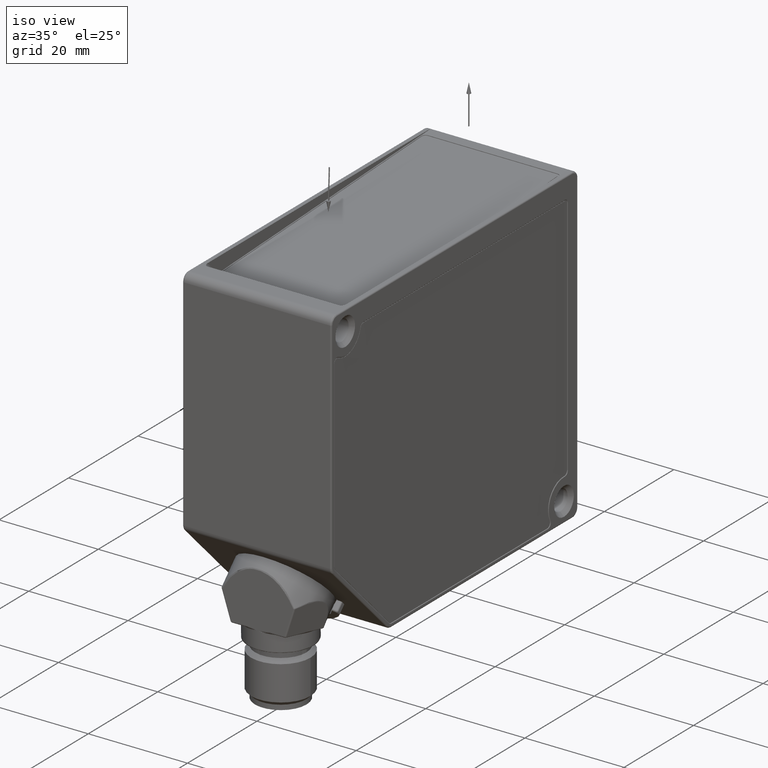
[diagram: clean part render]
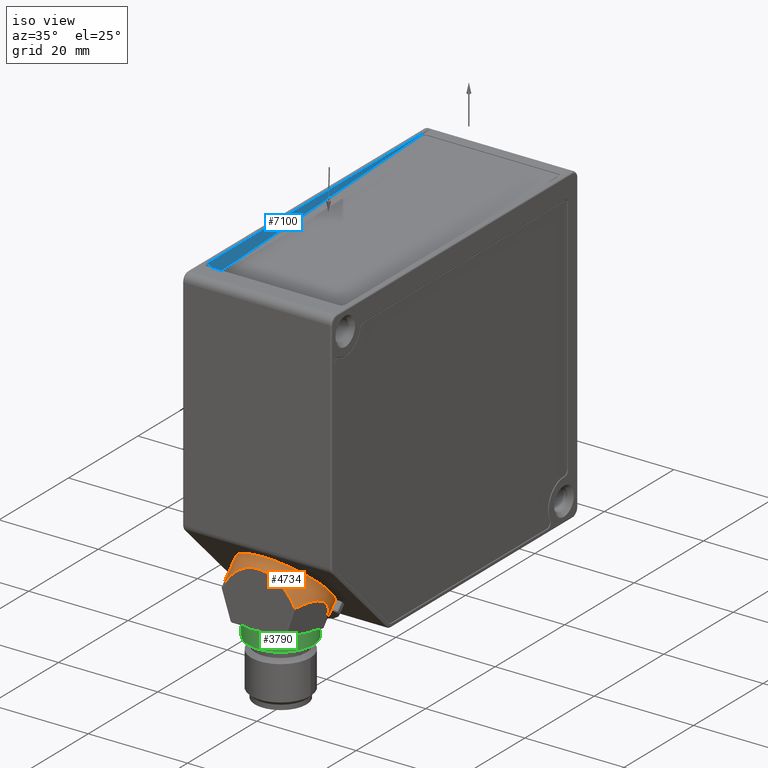
[diagram: same view with three faces highlighted in distinct colors, each labeled with its STEP entity id]
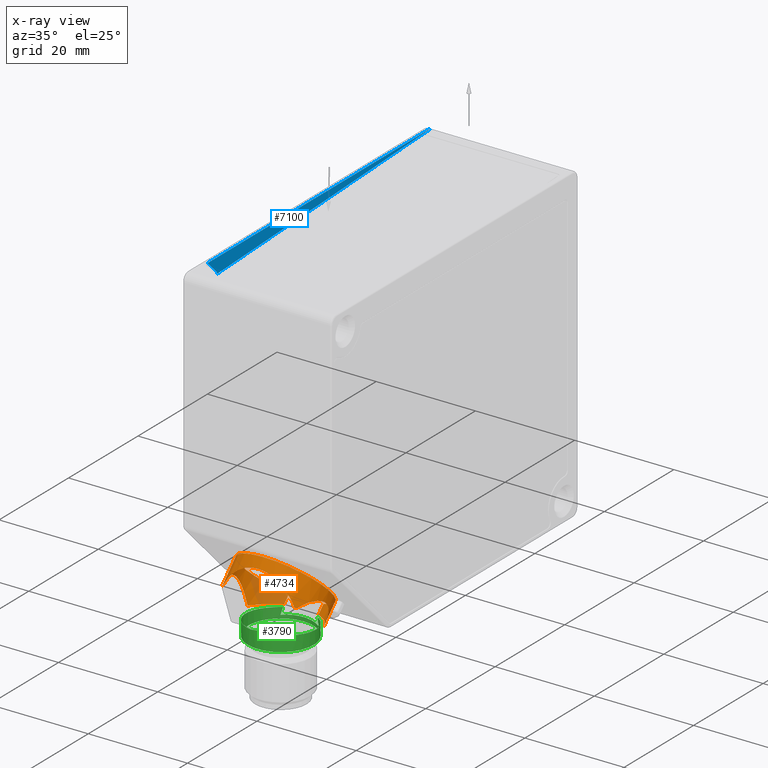
[diagram: x-ray of the same camera — body ghosted, the three highlighted faces saturated]
A machine part, iso view with three faces highlighted in distinct colors.
The next image is the same camera in x-ray (body ghosted, the three faces saturated) — at least one of them is partly hidden behind the body in this view.
Their STEP definitions:

[orange] entity #4734 — the highlighted cylindrical surface (partial cylindrical patch) has radius 9.05 mm, axis along (-0, 0.7071, 0.7071).
#21 = CARTESIAN_POINT ( 'NONE',  ( -0.3373057980377694998, 0.1565639601998413954, -2.161429091982778772 ) ) ;
#29 = DIRECTION ( 'NONE',  ( -4.857225732734976664E-17, 0.7071067811865475727, 0.7071067811865475727 ) ) ;
#64 = EDGE_CURVE ( 'NONE', #9028, #3187, #10433, .T. ) ;
#81 = CARTESIAN_POINT ( 'NONE',  ( -0.3418503414493012094, 0.3204783628916074156, -2.301888781527227312 ) ) ;
#241 = B_SPLINE_CURVE_WITH_KNOTS ( 'NONE', 3,
 ( #11291, #4150, #8115, #7327 ),
 .UNSPECIFIED., .F., .F.,
 ( 4, 4 ),
 ( 0.000000000000000000, 1.000000000000000000 ),
 .UNSPECIFIED. ) ;
#474 = CARTESIAN_POINT ( 'NONE',  ( 0.3244576915894867297, 0.1131979065643592963, -2.158565370466045241 ) ) ;
#669 = CARTESIAN_POINT ( 'NONE',  ( 0.3475848882676926821, 0.3132033383182019626, -2.278185782378934654 ) ) ;
#729 = CARTESIAN_POINT ( 'NONE',  ( 0.3440335134400122619, 0.3180401500581909735, -2.293356136015400892 ) ) ;
#750 = CARTESIAN_POINT ( 'NONE',  ( 0.3032565337447246656, 0.3240059732317909780, -2.420825919330255704 ) ) ;
#786 = CARTESIAN_POINT ( 'NONE',  ( -0.003580030829162922021, 0.01373775761060886530, -1.962713493731645054 ) ) ;
#852 = CARTESIAN_POINT ( 'NONE',  ( -0.2364825308681302307, 0.01584212575123468067, -2.087574010814546632 ) ) ;
#891 = EDGE_CURVE ( 'NONE', #9532, #2340, #12580, .T. ) ;
#916 = CARTESIAN_POINT ( 'NONE',  ( -0.2116506568601266847, 0.01535911917401289878, -2.059102260355671454 ) ) ;
#983 = CARTESIAN_POINT ( 'NONE',  ( 0.2727102391403358750, 0.01670052180699330840, -2.138738414205357596 ) ) ;
#1205 = VERTEX_POINT ( 'NONE', #1766 ) ;
#1352 = VERTEX_POINT ( 'NONE', #1504 ) ;
#1504 = CARTESIAN_POINT ( 'NONE',  ( 0.2353163096929225540, 0.4265283089346103007, -2.432139300135260029 ) ) ;
#1536 = CARTESIAN_POINT ( 'NONE',  ( 0.3317602044777125392, 0.1370998692952246356, -2.159287129757275991 ) ) ;
#1588 = DIRECTION ( 'NONE',  ( 4.857225732734976664E-17, -0.7071067811865475727, -0.7071067811865475727 ) ) ;
#1600 = CARTESIAN_POINT ( 'NONE',  ( 0.3365722353176888726, 0.1540638287383672145, -2.160911637467846536 ) ) ;
#1655 = CARTESIAN_POINT ( 'NONE',  ( -0.1792775088082428359, 0.4740811777291519813, -2.441690235767152384 ) ) ;
#1667 = CARTESIAN_POINT ( 'NONE',  ( 0.3536187948220508304, 0.2310483468736858337, -2.182647905566876823 ) ) ;
#1711 = CARTESIAN_POINT ( 'NONE',  ( -0.2818309777799006266, 0.01696807343438104868, -2.154375976734985709 ) ) ;
#1727 = CARTESIAN_POINT ( 'NONE',  ( 0.3092121714392322973, 0.06766121646756248498, -2.161152027913084694 ) ) ;
#1738 = CARTESIAN_POINT ( 'NONE',  ( -0.3103694363837418702, 0.3270627439973199935, -2.401957966292430413 ) ) ;
#1766 = CARTESIAN_POINT ( 'NONE',  ( -0.3009878911135214219, 0.3234361422914196482, -2.426528288211121875 ) ) ;
#1771 = CARTESIAN_POINT ( 'NONE',  ( -0.1878342521684495670, 0.01498781373662229702, -2.037034285530301414 ) ) ;
#1790 = CARTESIAN_POINT ( 'NONE',  ( 0.3032565337447246656, 0.3240059732317909780, -2.420825919330255704 ) ) ;
#1837 = CARTESIAN_POINT ( 'NONE',  ( -0.007047492343485719721, 0.01373883152497862824, -1.962785561029338766 ) ) ;
#1908 = CARTESIAN_POINT ( 'NONE',  ( 0.03455965357533262450, 0.01377330765845866112, -1.964937712085197408 ) ) ;
#1969 = CARTESIAN_POINT ( 'NONE',  ( 0.08949575505010384791, 0.01400359788951257775, -1.978482322086254408 ) ) ;
#2034 = CARTESIAN_POINT ( 'NONE',  ( -0.1649509165261583421, 0.01468626133962540152, -2.018988731386211377 ) ) ;
#2120 = VERTEX_POINT ( 'NONE', #4716 ) ;
#2131 = CARTESIAN_POINT ( 'NONE',  ( -0.3375020632717470326, 0.1572872854422971423, -2.161523450690107317 ) ) ;
#2340 = VERTEX_POINT ( 'NONE', #9407 ) ;
#2388 = CARTESIAN_POINT ( 'NONE',  ( -0.1810690987895234583, 0.4726686140636989220, -2.441613468624826311 ) ) ;
#2450 = CARTESIAN_POINT ( 'NONE',  ( -0.3557900078515745523, 0.2877469789322092408, -2.229586643023659498 ) ) ;
#2463 = ORIENTED_EDGE ( 'NONE', *, *, #4328, .T. ) ;
#2479 = EDGE_CURVE ( 'NONE', #9937, #1352, #13039, .T. ) ;
#2503 = CARTESIAN_POINT ( 'NONE',  ( -0.2249067010994372506, 0.4333519142565980253, -2.437772730743672955 ) ) ;
#2535 = CARTESIAN_POINT ( 'NONE',  ( 0.3349885122665128834, 0.3282815506094491909, -2.330046393161829599 ) ) ;
#2586 = CARTESIAN_POINT ( 'NONE',  ( -0.1627159711701160749, 0.4864537153617773946, -2.442172518459178931 ) ) ;
#2588 = VERTEX_POINT ( 'NONE', #12120 ) ;
#2599 = CARTESIAN_POINT ( 'NONE',  ( 0.3032565337447246656, 0.3240059732317909780, -2.420825919330255704 ) ) ;
#2658 = AXIS2_PLACEMENT_3D ( 'NONE', #5485, #1588, #3508 ) ;
#2710 = CARTESIAN_POINT ( 'NONE',  ( -0.2902570552131359394, 0.01724550260230529528, -2.170836774033314764 ) ) ;
#2771 = CARTESIAN_POINT ( 'NONE',  ( -0.1371651485273857884, 0.01437136374171399909, -2.000453989647130282 ) ) ;
#2785 = CARTESIAN_POINT ( 'NONE',  ( -0.2847055269213616402, 0.3565009867412244904, -2.429812815876571719 ) ) ;
#2786 = B_SPLINE_CURVE_WITH_KNOTS ( 'NONE', 3,
 ( #12893, #10056, #2785, #5886 ),
 .UNSPECIFIED., .F., .F.,
 ( 4, 4 ),
 ( 0.000000000000000000, 1.000000000000000000 ),
 .UNSPECIFIED. ) ;
#2837 = CARTESIAN_POINT ( 'NONE',  ( 0.1846327535783063023, 0.01494073370553782899, -2.034219586152010706 ) ) ;
#2872 = CARTESIAN_POINT ( 'NONE',  ( -0.3386029851554827053, 0.3232023066476868989, -2.314137467956025151 ) ) ;
#2906 = CARTESIAN_POINT ( 'NONE',  ( 0.1936578739429471729, 0.01507369599478169085, -2.042164174328435777 ) ) ;
#2935 = EDGE_CURVE ( 'NONE', #6178, #9532, #241, .T. ) ;
#2977 = CARTESIAN_POINT ( 'NONE',  ( 0.2385000722603436984, 0.01588408566750295833, -2.090073422435400730 ) ) ;
#3037 = CARTESIAN_POINT ( 'NONE',  ( 0.09640004958094937348, 0.01404651366006772449, -1.981074153167629470 ) ) ;
#3132 = CARTESIAN_POINT ( 'NONE',  ( -0.3384019601228753227, 0.1606293109035148436, -2.161980299869863842 ) ) ;
#3187 = VERTEX_POINT ( 'NONE', #4719 ) ;
#3508 = DIRECTION ( 'NONE',  ( -1.776356839400250859E-15, -0.7071067811865474617, 0.7071067811865474617 ) ) ;
#3518 = CARTESIAN_POINT ( 'NONE',  ( 0.3443417978315393424, 0.3176764927089300028, -2.292091951202783306 ) ) ;
#3702 = ORIENTED_EDGE ( 'NONE', *, *, #64, .T. ) ;
#3708 = CARTESIAN_POINT ( 'NONE',  ( 0.3355546045436977320, 0.1503920759182069966, -2.160487810912605333 ) ) ;
#3758 = CARTESIAN_POINT ( 'NONE',  ( -0.1102328490619608053, 0.01414346657502919824, -1.986904462775068714 ) ) ;
#3774 = CARTESIAN_POINT ( 'NONE',  ( 0.3457439583092356550, 0.3158993294852954770, -2.286226703784473457 ) ) ;
#3825 = CARTESIAN_POINT ( 'NONE',  ( 0.02416102139062393378, 0.01375253656636869597, -1.963671073860299154 ) ) ;
#3889 = CARTESIAN_POINT ( 'NONE',  ( 0.1100157792081410957, 0.01414186111198403178, -1.986806331263076819 ) ) ;
#3963 = CARTESIAN_POINT ( 'NONE',  ( 0.2344646782096759252, 0.01580058970806012819, -2.085105211020698679 ) ) ;
#4028 = CARTESIAN_POINT ( 'NONE',  ( -0.1664292681894579407, 0.01470440595788706159, -2.020069342586483074 ) ) ;
#4111 = CARTESIAN_POINT ( 'NONE',  ( -0.3471927522521117693, 0.1967152613355725443, -2.169689498256808680 ) ) ;
#4150 = CARTESIAN_POINT ( 'NONE',  ( 0.1850755985962607153, 0.4743547113656206848, -2.438928679509398290 ) ) ;
#4328 = EDGE_CURVE ( 'NONE', #1352, #6178, #12934, .T. ) ;
#4356 = CARTESIAN_POINT ( 'NONE',  ( -0.1826089226898253703, 0.4714443553940863563, -2.441543998488392653 ) ) ;
#4420 = CARTESIAN_POINT ( 'NONE',  ( -0.3263085044461577766, 0.1162038968496584834, -2.156303303104773583 ) ) ;
#4422 = CARTESIAN_POINT ( 'NONE',  ( -0.1363498056261443214, 0.5592560100101805487, -2.386586306215456421 ) ) ;
#4494 = CARTESIAN_POINT ( 'NONE',  ( 0.3293996736952625182, 0.1292334915100005199, -2.158922026767654323 ) ) ;
#4526 = CARTESIAN_POINT ( 'NONE',  ( -0.2323824873848895634, 0.4258054827751256433, -2.436714695658281027 ) ) ;
#4550 = CARTESIAN_POINT ( 'NONE',  ( -0.1726823641151886413, 0.4791480312821668752, -2.441927965014671464 ) ) ;
#4635 = CARTESIAN_POINT ( 'NONE',  ( 0.2109953504783215472, 0.4509726579939168922, -2.435372082269928296 ) ) ;
#4637 = B_SPLINE_CURVE_WITH_KNOTS ( 'NONE', 3,
 ( #2503, #4526, #8694, #12600 ),
 .UNSPECIFIED., .F., .F.,
 ( 4, 4 ),
 ( 0.000000000000000000, 1.000000000000000000 ),
 .UNSPECIFIED. ) ;
#4638 = CARTESIAN_POINT ( 'NONE',  ( 0.2837039418837620786, 0.3644449108835564610, -2.425219281752212463 ) ) ;
#4716 = CARTESIAN_POINT ( 'NONE',  ( 0.2901251297298145237, 0.01724116187900382249, -2.170579224450756239 ) ) ;
#4719 = CARTESIAN_POINT ( 'NONE',  ( -0.1363498136997982058, 0.5036367134425254743, -2.442205602819474741 ) ) ;
#4734 = ADVANCED_FACE ( 'NONE', ( #10798 ), #4777, .T. ) ;
#4756 = CARTESIAN_POINT ( 'NONE',  ( 0.3515150996192913935, 0.3049258021764038595, -2.258644327763474458 ) ) ;
#4769 = CARTESIAN_POINT ( 'NONE',  ( -0.3290311254611034686, 0.3273887129435336107, -2.346634235021170856 ) ) ;
#4777 = CYLINDRICAL_SURFACE ( 'NONE', #7279, 0.3562992125984252301 ) ;
#4810 = CARTESIAN_POINT ( 'NONE',  ( 0.001545961647952103207, 0.01373747574293101778, -1.962693582921708479 ) ) ;
#4878 = CARTESIAN_POINT ( 'NONE',  ( -0.01224961577843611434, 0.01374125597903967134, -1.962946572824323166 ) ) ;
#4895 = CARTESIAN_POINT ( 'NONE',  ( -0.2902570552131359394, 0.01724550260230529528, -2.170836774033314764 ) ) ;
#4944 = CARTESIAN_POINT ( 'NONE',  ( 0.1167876384918415250, 0.01419463421705726043, -1.989966707990343364 ) ) ;
#5011 = CARTESIAN_POINT ( 'NONE',  ( 0.2816918022973952107, 0.01696386870986327580, -2.154126496413596659 ) ) ;
#5055 = DIRECTION ( 'NONE',  ( 0.000000000000000000, -0.7071067811865474617, 0.7071067811865474617 ) ) ;
#5105 = CARTESIAN_POINT ( 'NONE',  ( -0.3396306505981719903, 0.1652658689102808887, -2.162673727856615269 ) ) ;
#5121 = ORIENTED_EDGE ( 'NONE', *, *, #2479, .T. ) ;
#5164 = CARTESIAN_POINT ( 'NONE',  ( -0.3106898327617939048, 0.06958873201716718471, -2.159082829567935846 ) ) ;
#5485 = CARTESIAN_POINT ( 'NONE',  ( -3.950252198838886955E-18, 0.3264923322123222671, -2.153822628417597862 ) ) ;
#5510 = EDGE_CURVE ( 'NONE', #2588, #1205, #2786, .T. ) ;
#5553 = CARTESIAN_POINT ( 'NONE',  ( 0.3002549612022729075, 0.04315258497469637300, -2.164763344509119225 ) ) ;
#5619 = CARTESIAN_POINT ( 'NONE',  ( 0.3489776140457377940, 0.3105805686916319197, -2.271553995019730987 ) ) ;
#5686 = CARTESIAN_POINT ( 'NONE',  ( 0.3364158260751852203, 0.1534965902095484780, -2.160843734448762543 ) ) ;
#5731 = CARTESIAN_POINT ( 'NONE',  ( -0.2466989310800414004, 0.01606102456306852597, -2.100659734836170411 ) ) ;
#5747 = CARTESIAN_POINT ( 'NONE',  ( 0.3426210464809385514, 0.1760974332211454607, -2.163630176932218152 ) ) ;
#5759 = CARTESIAN_POINT ( 'NONE',  ( -0.3185599420433609108, 0.3284511798241628311, -2.378860130705683584 ) ) ;
#5794 = CARTESIAN_POINT ( 'NONE',  ( -0.1938488381448611186, 0.01507656698360502687, -2.042336239661738162 ) ) ;
#5871 = CARTESIAN_POINT ( 'NONE',  ( -0.2231963744561233087, 0.01557009423538777658, -2.071427368886280096 ) ) ;
#5886 = CARTESIAN_POINT ( 'NONE',  ( -0.3009878911135214219, 0.3234361422914196482, -2.426528288211121875 ) ) ;
#5902 = CARTESIAN_POINT ( 'NONE',  ( -0.3408006349470585339, 0.3214404711182211050, -2.305924340831686070 ) ) ;
#5934 = CARTESIAN_POINT ( 'NONE',  ( 0.2230179693511319117, 0.01556667328156831343, -2.071228442557816685 ) ) ;
#5998 = CARTESIAN_POINT ( 'NONE',  ( 0.2514511523420409067, 0.01616568010211321890, -2.106931004415357300 ) ) ;
#6066 = CARTESIAN_POINT ( 'NONE',  ( -0.1170034172868428118, 0.01419636376592117201, -1.990070934721413165 ) ) ;
#6099 = CARTESIAN_POINT ( 'NONE',  ( -0.3513540307462175716, 0.3069175585246299853, -2.260828122205171375 ) ) ;
#6161 = CARTESIAN_POINT ( 'NONE',  ( -0.2902570552131359394, 0.01724550260230529528, -2.170836774033314764 ) ) ;
#6178 = VERTEX_POINT ( 'NONE', #4635 ) ;
#6426 = VERTEX_POINT ( 'NONE', #11444 ) ;
#6541 = EDGE_CURVE ( 'NONE', #2120, #9937, #8619, .T. ) ;
#6550 = CARTESIAN_POINT ( 'NONE',  ( -0.1363498136997982058, 0.5036367134425254743, -2.442205602819474741 ) ) ;
#6603 = CARTESIAN_POINT ( 'NONE',  ( -0.1827912520299223575, 0.4712987574116651590, -2.441535554582322742 ) ) ;
#6734 = CARTESIAN_POINT ( 'NONE',  ( -0.2540051672405674310, 0.01622706838377147714, -2.110599773516222299 ) ) ;
#6741 = VERTEX_POINT ( 'NONE', #4895 ) ;
#6795 = CARTESIAN_POINT ( 'NONE',  ( -0.08971398591642108789, 0.01400488451712932243, -1.978561230694449335 ) ) ;
#6861 = CARTESIAN_POINT ( 'NONE',  ( -0.02439052992750589954, 0.01375287190122738597, -1.963692906736885568 ) ) ;
#6890 = EDGE_CURVE ( 'NONE', #6741, #2120, #12564, .T. ) ;
#6934 = CARTESIAN_POINT ( 'NONE',  ( -0.2355436611588560825, 0.01582275670195820716, -2.086422140332220732 ) ) ;
#6997 = CARTESIAN_POINT ( 'NONE',  ( -0.001773332708779218336, 0.01373749181338940369, -1.962695064641908127 ) ) ;
#7057 = CARTESIAN_POINT ( 'NONE',  ( 0.2353743773127805750, 0.01581927024435999737, -2.086214828305940738 ) ) ;
#7089 = ORIENTED_EDGE ( 'NONE', *, *, #7161, .T. ) ;
#7160 = CARTESIAN_POINT ( 'NONE',  ( -0.3556891905616523242, 0.2485424323925016776, -2.193027519806642012 ) ) ;
#7161 = EDGE_CURVE ( 'NONE', #6426, #2588, #4637, .T. ) ;
#7279 = AXIS2_PLACEMENT_3D ( 'NONE', #7886, #29, #5055 ) ;
#7319 = ORIENTED_EDGE ( 'NONE', *, *, #5510, .T. ) ;
#7327 = CARTESIAN_POINT ( 'NONE',  ( 0.1363498057765686056, 0.5045659676791267589, -2.441276349060099715 ) ) ;
#7605 = CARTESIAN_POINT ( 'NONE',  ( -0.1823520460775644725, 0.4716491836950218453, -2.441555791953969656 ) ) ;
#7718 = EDGE_CURVE ( 'NONE', #2340, #9028, #8344, .T. ) ;
#7731 = CARTESIAN_POINT ( 'NONE',  ( 0.2195676465029865465, 0.4432396450602403837, -2.434195824443813105 ) ) ;
#7736 = CARTESIAN_POINT ( 'NONE',  ( 0.3528760164356575801, 0.3006103264903188244, -2.250509764549018410 ) ) ;
#7788 = CARTESIAN_POINT ( 'NONE',  ( -0.2346366749519115946, 0.01580411336827413499, -2.085314403703284913 ) ) ;
#7850 = CARTESIAN_POINT ( 'NONE',  ( -0.1787146643582447347, 0.01486220707024640472, -2.029510810462325399 ) ) ;
#7886 = CARTESIAN_POINT ( 'NONE',  ( 1.287793144213267755E-17, 0.08151045526580197320, -2.398804505364117823 ) ) ;
#7914 = CARTESIAN_POINT ( 'NONE',  ( 0.1369538974587090896, 0.01436926470452923842, -2.000331714245678238 ) ) ;
#7986 = CARTESIAN_POINT ( 'NONE',  ( 0.2363137640505778847, 0.01583863054214688232, -2.087365857950735926 ) ) ;
#8047 = CARTESIAN_POINT ( 'NONE',  ( 0.2114667595476076856, 0.01535591582525533752, -2.058913825261713626 ) ) ;
#8115 = CARTESIAN_POINT ( 'NONE',  ( 0.1595350575065804521, 0.4917915439432967717, -2.440469166177817062 ) ) ;
#8144 = CARTESIAN_POINT ( 'NONE',  ( -0.3425802772103919147, 0.3197584230212400791, -2.299035122082995652 ) ) ;
#8344 = CIRCLE ( 'NONE', #2658, 0.3562992125984252301 ) ;
#8457 = VECTOR ( 'NONE', #11589, 39.37007874015748854 ) ;
#8482 = CARTESIAN_POINT ( 'NONE',  ( 0.1363498056261442937, 0.3142741330636604213, -2.631568183161976382 ) ) ;
#8522 = CARTESIAN_POINT ( 'NONE',  ( -0.1819668694674570486, 0.4719559698052159802, -2.441573356825220475 ) ) ;
#8532 = CARTESIAN_POINT ( 'NONE',  ( 0.3214809288597296200, 0.3305230116965785503, -2.372522014128415790 ) ) ;
#8602 = CARTESIAN_POINT ( 'NONE',  ( 0.3555119611864921980, 0.2467441286755976404, -2.191779654982769276 ) ) ;
#8619 = B_SPLINE_CURVE_WITH_KNOTS ( 'NONE', 3,
 ( #12828, #5553, #1727, #10645, #474, #4494, #1536, #12756, #3708, #12692, #5686, #1600, #5747, #9584, #1667, #8602, #9779, #9720, #7736, #4756, #5619, #669, #3774, #11696, #3518, #729, #2535, #8532, #2599 ),
 .UNSPECIFIED., .F., .F.,
 ( 4, 2, 2, 1, 1, 1, 2, 2, 2, 2, 2, 2, 1, 1, 2, 2, 4 ),
 ( 0.000000000000000000, 0.1249999999999953648, 0.1874999999999930611, 0.2187499999999919509, 0.2343749999999913958, 0.2421874999999911460, 0.2460937499999910349, 0.2499999999999908962, 0.3749999999999881206, 0.4999999999999854561, 0.6249999999999826805, 0.6874999999999821254, 0.7187499999999817923, 0.7343749999999816813, 0.7421874999999815703, 0.7499999999999814593, 1.000000000000000000 ),
 .UNSPECIFIED. ) ;
#8694 = CARTESIAN_POINT ( 'NONE',  ( -0.2394366392801726418, 0.4179174774520215130, -2.435770412292985299 ) ) ;
#8714 = CARTESIAN_POINT ( 'NONE',  ( 0.2353163096929225540, 0.4265283089346103007, -2.432139300135260029 ) ) ;
#8806 = CARTESIAN_POINT ( 'NONE',  ( -0.3322196156117877552, 0.3265102862063268829, -2.336295661735420470 ) ) ;
#8842 = CARTESIAN_POINT ( 'NONE',  ( -0.2430147285823667513, 0.01597975438282841359, -2.095789947694525424 ) ) ;
#8908 = CARTESIAN_POINT ( 'NONE',  ( 0.006817165327826606169, 0.01373875037889040265, -1.962779303282870202 ) ) ;
#8975 = CARTESIAN_POINT ( 'NONE',  ( 0.1662296874149854498, 0.01470195477068965591, -2.019922804614282974 ) ) ;
#9028 = VERTEX_POINT ( 'NONE', #4422 ) ;
#9050 = CARTESIAN_POINT ( 'NONE',  ( 0.2901251297298145237, 0.01724116187900382249, -2.170579224450756239 ) ) ;
#9132 = CARTESIAN_POINT ( 'NONE',  ( -0.3538731410034503533, 0.2327369143624856973, -2.183616801649178818 ) ) ;
#9196 = CARTESIAN_POINT ( 'NONE',  ( -0.3566494676437533262, 0.2759425392617552153, -2.215908915721404249 ) ) ;
#9407 = CARTESIAN_POINT ( 'NONE',  ( 0.1363498056261448210, 0.5592560100101229281, -2.386586306215513265 ) ) ;
#9441 = CARTESIAN_POINT ( 'NONE',  ( -0.3427138443719991989, 0.3196223583803536328, -2.298508917045488875 ) ) ;
#9532 = VERTEX_POINT ( 'NONE', #11930 ) ;
#9584 = CARTESIAN_POINT ( 'NONE',  ( 0.3471720069422828958, 0.1956921338695151724, -2.168546336569870725 ) ) ;
#9720 = CARTESIAN_POINT ( 'NONE',  ( 0.3559627668585417237, 0.2860802581354536245, -2.227574972505986572 ) ) ;
#9779 = CARTESIAN_POINT ( 'NONE',  ( 0.3566907540466021098, 0.2742822631111070386, -2.214243880218790927 ) ) ;
#9835 = CARTESIAN_POINT ( 'NONE',  ( -0.09661925785402683542, 0.01404790248896444112, -1.981159969633806694 ) ) ;
#9842 = B_SPLINE_CURVE_WITH_KNOTS ( 'NONE', 3,
 ( #10004, #1738, #5759, #4769, #8806, #11912, #2872, #5902, #81, #10194, #8144, #9441, #10509, #6099, #2450, #9196, #7160, #9132, #11251, #4111, #12545, #12181, #5105, #3132, #11192, #2131, #21, #4420, #5164, #6161 ),
 .UNSPECIFIED., .F., .F.,
 ( 4, 2, 2, 1, 1, 1, 2, 2, 2, 2, 2, 2, 1, 1, 1, 2, 2, 4 ),
 ( 0.000000000000000000, 0.1249999999999861777, 0.1874999999999799327, 0.2187499999999774902, 0.2343749999999771017, 0.2421874999999760469, 0.2460937499999755751, 0.2499999999999750755, 0.3749999999999811817, 0.4999999999999873435, 0.6249999999999934497, 0.6874999999999970024, 0.7187499999999984457, 0.7343749999999991118, 0.7421874999999993339, 0.7460937499999994449, 0.7499999999999995559, 1.000000000000000000 ),
 .UNSPECIFIED. ) ;
#9911 = CARTESIAN_POINT ( 'NONE',  ( -0.03478814040970105992, 0.01377382965425613670, -1.964968789958616568 ) ) ;
#9937 = VERTEX_POINT ( 'NONE', #1790 ) ;
#9975 = CARTESIAN_POINT ( 'NONE',  ( -0.06930328652630647623, 0.01389046892259303105, -1.971769182887583849 ) ) ;
#10004 = CARTESIAN_POINT ( 'NONE',  ( -0.3009878911135214219, 0.3234361422914196482, -2.426528288211121875 ) ) ;
#10039 = CARTESIAN_POINT ( 'NONE',  ( 0.2586377033712407569, 0.01633870677568772037, -2.117265545559975148 ) ) ;
#10056 = CARTESIAN_POINT ( 'NONE',  ( -0.2659438275569194210, 0.3852607281420953877, -2.432625836091041105 ) ) ;
#10105 = EDGE_CURVE ( 'NONE', #3187, #6426, #11055, .T. ) ;
#10106 = CARTESIAN_POINT ( 'NONE',  ( -0.1741304305905638783, 0.01480126600723201923, -2.025856418429779371 ) ) ;
#10184 = ORIENTED_EDGE ( 'NONE', *, *, #891, .T. ) ;
#10194 = CARTESIAN_POINT ( 'NONE',  ( -0.3422897035793733278, 0.3200487044025506767, -2.300174542873291816 ) ) ;
#10420 = ORIENTED_EDGE ( 'NONE', *, *, #12939, .T. ) ;
#10433 = LINE ( 'NONE', #12540, #12603 ) ;
#10444 = CARTESIAN_POINT ( 'NONE',  ( -0.2249067010994372506, 0.4333519142565980253, -2.437772730743672955 ) ) ;
#10503 = DIRECTION ( 'NONE',  ( 4.857225732734975432E-17, -0.7071067811865474617, -0.7071067811865474617 ) ) ;
#10509 = CARTESIAN_POINT ( 'NONE',  ( -0.3477795285244694723, 0.3143431382448903522, -2.278441474198156236 ) ) ;
#10579 = CARTESIAN_POINT ( 'NONE',  ( -0.1666684910023745192, 0.4836208980553791670, -2.442096361720400122 ) ) ;
#10635 = CARTESIAN_POINT ( 'NONE',  ( -0.2069825421270883314, 0.4514454541711170332, -2.440309505919464605 ) ) ;
#10645 = CARTESIAN_POINT ( 'NONE',  ( 0.3208683535537656395, 0.1021037045906270230, -2.158825626325441505 ) ) ;
#10699 = CARTESIAN_POINT ( 'NONE',  ( -0.1510544900989643780, 0.4945256095395510476, -2.442313389366209897 ) ) ;
#10764 = CARTESIAN_POINT ( 'NONE',  ( -0.2728561891137900042, 0.01670455181814666651, -2.138979545316547881 ) ) ;
#10798 = FACE_OUTER_BOUND ( 'NONE', #10901, .T. ) ;
#10826 = CARTESIAN_POINT ( 'NONE',  ( -0.05553549916236172335, 0.01383116754061611796, -1.968369535037367779 ) ) ;
#10893 = CARTESIAN_POINT ( 'NONE',  ( -0.2386676242674397597, 0.01588760242023567332, -2.090283533429764251 ) ) ;
#10901 = EDGE_LOOP ( 'NONE', ( #12662, #7089, #7319, #10420, #11739, #11042, #5121, #2463, #11914, #10184, #11635, #3702 ) ) ;
#10967 = CARTESIAN_POINT ( 'NONE',  ( 0.01201945345895982092, 0.01374110628622057795, -1.962935629822578631 ) ) ;
#11027 = CARTESIAN_POINT ( 'NONE',  ( 0.2428496400355741325, 0.01597619025455691150, -2.095575935939572254 ) ) ;
#11042 = ORIENTED_EDGE ( 'NONE', *, *, #6541, .T. ) ;
#11055 = B_SPLINE_CURVE_WITH_KNOTS ( 'NONE', 3,
 ( #6550, #11565, #10699, #2586, #10579, #4550, #11628, #1655, #2388, #8522, #7605, #4356, #6603, #11496, #10635, #10444 ),
 .UNSPECIFIED., .F., .F.,
 ( 4, 2, 2, 1, 1, 1, 1, 2, 2, 4 ),
 ( 0.000000000000000000, 0.2500000000000021649, 0.3750000000000029976, 0.4375000000000033862, 0.4687500000000038303, 0.4843750000000044409, 0.4921875000000055511, 0.4960937500000057176, 0.5000000000000058842, 1.000000000000000000 ),
 .UNSPECIFIED. ) ;
#11092 = CARTESIAN_POINT ( 'NONE',  ( 0.1501991994619349124, 0.01450811002578059582, -2.008420896613883233 ) ) ;
#11192 = CARTESIAN_POINT ( 'NONE',  ( -0.3378635924435446358, 0.1586262224012518762, -2.161703470912577085 ) ) ;
#11251 = CARTESIAN_POINT ( 'NONE',  ( -0.3491165516853554918, 0.2060881567931421021, -2.172763410481622248 ) ) ;
#11291 = CARTESIAN_POINT ( 'NONE',  ( 0.2109953504783215472, 0.4509726579939168922, -2.435372082269928296 ) ) ;
#11444 = CARTESIAN_POINT ( 'NONE',  ( -0.2249067010994372506, 0.4333519142565980253, -2.437772730743672955 ) ) ;
#11496 = CARTESIAN_POINT ( 'NONE',  ( -0.1924256513687896408, 0.4635991513474291836, -2.441087267248003734 ) ) ;
#11565 = CARTESIAN_POINT ( 'NONE',  ( -0.1435425591297588843, 0.4993382616091891490, -2.442290637164835854 ) ) ;
#11589 = DIRECTION ( 'NONE',  ( -4.857225732734975432E-17, 0.7071067811865474617, 0.7071067811865474617 ) ) ;
#11628 = CARTESIAN_POINT ( 'NONE',  ( -0.1757105488062383203, 0.4768556871180621437, -2.441830225688322198 ) ) ;
#11635 = ORIENTED_EDGE ( 'NONE', *, *, #7718, .T. ) ;
#11696 = CARTESIAN_POINT ( 'NONE',  ( 0.3449088102400308942, 0.3169761496480241192, -2.289737296095901709 ) ) ;
#11715 = CARTESIAN_POINT ( 'NONE',  ( 0.2353163096929225540, 0.4265283089346103007, -2.432139300135260029 ) ) ;
#11739 = ORIENTED_EDGE ( 'NONE', *, *, #6890, .T. ) ;
#11747 = CARTESIAN_POINT ( 'NONE',  ( -0.2587931476199918923, 0.01634249624501030521, -2.117493812532410757 ) ) ;
#11755 = CARTESIAN_POINT ( 'NONE',  ( 0.2109953504783215472, 0.4509726579939168922, -2.435372082269928296 ) ) ;
#11822 = CARTESIAN_POINT ( 'NONE',  ( -0.2349172223983470587, 0.01580987000788893621, -2.085656304359206903 ) ) ;
#11881 = CARTESIAN_POINT ( 'NONE',  ( 0.1739329654354083432, 0.01479872277447264947, -2.025702668598285960 ) ) ;
#11912 = CARTESIAN_POINT ( 'NONE',  ( -0.3365504776548074450, 0.3244317846223673252, -2.321418434907769335 ) ) ;
#11914 = ORIENTED_EDGE ( 'NONE', *, *, #2935, .T. ) ;
#11930 = CARTESIAN_POINT ( 'NONE',  ( 0.1363498057765686056, 0.5045659676791267589, -2.441276349060099715 ) ) ;
#11951 = CARTESIAN_POINT ( 'NONE',  ( 0.1693150285910165476, 0.01474035349941871936, -2.022213337251888898 ) ) ;
#12023 = CARTESIAN_POINT ( 'NONE',  ( -0.1695137781593529513, 0.01474283969005163106, -2.022362765989973887 ) ) ;
#12085 = CARTESIAN_POINT ( 'NONE',  ( 0.2347475946652378687, 0.01580638927519466969, -2.085449553253021282 ) ) ;
#12120 = CARTESIAN_POINT ( 'NONE',  ( -0.2460823019005188572, 0.4097300478414132030, -2.434982030201913616 ) ) ;
#12181 = CARTESIAN_POINT ( 'NONE',  ( -0.3419778915237939310, 0.1743889517783490661, -2.164249786357706817 ) ) ;
#12540 = CARTESIAN_POINT ( 'NONE',  ( -0.1363498056261439051, 0.3142741330636605324, -2.631568183161976826 ) ) ;
#12545 = CARTESIAN_POINT ( 'NONE',  ( -0.3438005616687844213, 0.1819488892640431510, -2.165922392682653630 ) ) ;
#12564 = B_SPLINE_CURVE_WITH_KNOTS ( 'NONE', 3,
 ( #2710, #1711, #10764, #11747, #6734, #5731, #8842, #10893, #852, #6934, #11822, #7788, #5871, #916, #5794, #1771, #7850, #10106, #12023, #4028, #2034, #12808, #2771, #6066, #3758, #9835, #6795, #9975, #10826, #9911, #6861, #4878, #1837, #786, #6997, #4810, #12882, #8908, #10967, #3825, #1908, #13085, #13016, #1969, #3037, #3889, #4944, #7914, #11092, #12943, #8975, #11951, #11881, #2837, #2906, #8047, #5934, #3963, #12085, #7057, #7986, #2977, #11027, #5998, #10039, #983, #5011, #9050 ),
 .UNSPECIFIED., .F., .F.,
 ( 4, 2, 2, 1, 1, 1, 2, 2, 2, 2, 1, 2, 2, 2, 2, 2, 2, 1, 1, 2, 2, 2, 1, 1, 2, 2, 2, 2, 2, 2, 1, 1, 2, 2, 2, 1, 1, 1, 1, 2, 4 ),
 ( 0.000000000000000000, 0.06249999999997690736, 0.09374999999996533329, 0.1093749999999599626, 0.1171874999999577283, 0.1210937499999566597, 0.1230468749999565903, 0.1249999999999565070, 0.1874999999999569789, 0.2187499999999572009, 0.2343749999999569789, 0.2421874999999571454, 0.2499999999999573119, 0.3124999999999597544, 0.3437499999999609757, 0.3749999999999621969, 0.4374999999999650835, 0.4687499999999665268, 0.4843749999999672484, 0.4921874999999675815, 0.4999999999999679146, 0.5078124999999682476, 0.5156249999999685807, 0.5312499999999692468, 0.5624999999999705791, 0.6249999999999730216, 0.6562499999999742428, 0.6874999999999754641, 0.7499999999999783507, 0.7578124999999787947, 0.7656249999999792388, 0.7812499999999809042, 0.8124999999999843459, 0.8749999999999903411, 0.8769531249999902300, 0.8789062499999902300, 0.8828124999999910072, 0.8906249999999917843, 0.9062499999999934497, 0.9374999999999958922, 1.000000000000000000 ),
 .UNSPECIFIED. ) ;
#12580 = LINE ( 'NONE', #8482, #8457 ) ;
#12600 = CARTESIAN_POINT ( 'NONE',  ( -0.2460823019005188572, 0.4097300478414132030, -2.434982030201913616 ) ) ;
#12603 = VECTOR ( 'NONE', #10503, 39.37007874015748854 ) ;
#12662 = ORIENTED_EDGE ( 'NONE', *, *, #10105, .T. ) ;
#12692 = CARTESIAN_POINT ( 'NONE',  ( 0.3360727040459231540, 0.1522567497085802746, -2.160699102880786704 ) ) ;
#12746 = CARTESIAN_POINT ( 'NONE',  ( 0.2276724275970188061, 0.4350745628729235648, -2.433101266287132969 ) ) ;
#12756 = CARTESIAN_POINT ( 'NONE',  ( 0.3343217701985566892, 0.1460068621815148737, -2.160034467053259188 ) ) ;
#12808 = CARTESIAN_POINT ( 'NONE',  ( -0.1504065568751426774, 0.01451045135063551948, -2.008554888134086003 ) ) ;
#12828 = CARTESIAN_POINT ( 'NONE',  ( 0.2901251297298145237, 0.01724116187900382249, -2.170579224450756239 ) ) ;
#12882 = CARTESIAN_POINT ( 'NONE',  ( 0.003349619686997848227, 0.01373771925705129758, -1.962710363067890817 ) ) ;
#12893 = CARTESIAN_POINT ( 'NONE',  ( -0.2460823019005188572, 0.4097300478414132030, -2.434982030201913616 ) ) ;
#12934 = B_SPLINE_CURVE_WITH_KNOTS ( 'NONE', 3,
 ( #8714, #12746, #7731, #11755 ),
 .UNSPECIFIED., .F., .F.,
 ( 4, 4 ),
 ( 0.000000000000000000, 1.000000000000000000 ),
 .UNSPECIFIED. ) ;
#12939 = EDGE_CURVE ( 'NONE', #1205, #6741, #9842, .T. ) ;
#12943 = CARTESIAN_POINT ( 'NONE',  ( 0.1647488584233893771, 0.01468379957917755919, -2.018842062697027373 ) ) ;
#12978 = CARTESIAN_POINT ( 'NONE',  ( 0.2602712617042246546, 0.3986273870952539711, -2.428998772997971844 ) ) ;
#13016 = CARTESIAN_POINT ( 'NONE',  ( 0.06908003117444623531, 0.01388934658221006348, -1.971707777099778847 ) ) ;
#13039 = B_SPLINE_CURVE_WITH_KNOTS ( 'NONE', 3,
 ( #750, #4638, #12978, #11715 ),
 .UNSPECIFIED., .F., .F.,
 ( 4, 4 ),
 ( 0.000000000000000000, 1.000000000000000000 ),
 .UNSPECIFIED. ) ;
#13085 = CARTESIAN_POINT ( 'NONE',  ( 0.05530966367571488185, 0.01383027940794897583, -1.968320129983017086 ) ) ;

[blue] entity #7100 — the highlighted planar face has unit normal (-1, 0, 0).
#24 = VERTEX_POINT ( 'NONE', #12161 ) ;
#115 = LINE ( 'NONE', #12217, #4499 ) ;
#381 = PLANE ( 'NONE',  #1590 ) ;
#1251 = DIRECTION ( 'NONE',  ( -1.000000000000000000, 0.000000000000000000, 0.000000000000000000 ) ) ;
#1590 = AXIS2_PLACEMENT_3D ( 'NONE', #3613, #10494, #9499 ) ;
#1808 = EDGE_CURVE ( 'NONE', #2500, #8318, #10604, .T. ) ;
#1886 = VECTOR ( 'NONE', #6085, 39.37007874015747433 ) ;
#1960 = EDGE_CURVE ( 'NONE', #2500, #10460, #115, .T. ) ;
#2050 = CARTESIAN_POINT ( 'NONE',  ( -0.5511811023622046335, 2.795275590551181466, 0.000000000000000000 ) ) ;
#2165 = DIRECTION ( 'NONE',  ( 0.000000000000000000, 0.000000000000000000, 1.000000000000000000 ) ) ;
#2173 = EDGE_CURVE ( 'NONE', #24, #10460, #9215, .T. ) ;
#2289 = VECTOR ( 'NONE', #11405, 39.37007874015748143 ) ;
#2500 = VERTEX_POINT ( 'NONE', #3656 ) ;
#3223 = CARTESIAN_POINT ( 'NONE',  ( -0.5511811023622046335, 2.736220472440945350, -0.05905511811023622659 ) ) ;
#3613 = CARTESIAN_POINT ( 'NONE',  ( -0.5511811023622047445, 0.000000000000000000, 0.000000000000000000 ) ) ;
#3656 = CARTESIAN_POINT ( 'NONE',  ( -0.5511811023622046335, 2.736220472440945350, 0.000000000000000000 ) ) ;
#3662 = VECTOR ( 'NONE', #12203, 39.37007874015748854 ) ;
#4017 = CARTESIAN_POINT ( 'NONE',  ( -0.5511811023622047445, 0.3336355004031145155, -0.1061767433430819002 ) ) ;
#4373 = ORIENTED_EDGE ( 'NONE', *, *, #2173, .F. ) ;
#4437 = VERTEX_POINT ( 'NONE', #5320 ) ;
#4499 = VECTOR ( 'NONE', #6652, 39.37007874015748143 ) ;
#4811 = ORIENTED_EDGE ( 'NONE', *, *, #1960, .T. ) ;
#5320 = CARTESIAN_POINT ( 'NONE',  ( -0.5511811023622046335, 0.3342136568034032584, -0.1182132817692826549 ) ) ;
#5399 = CARTESIAN_POINT ( 'NONE',  ( -0.5511811023622046335, 0.2274587570600329900, 8.537024980200822558E-18 ) ) ;
#5958 = ORIENTED_EDGE ( 'NONE', *, *, #10851, .F. ) ;
#6067 = ORIENTED_EDGE ( 'NONE', *, *, #6693, .T. ) ;
#6085 = DIRECTION ( 'NONE',  ( 0.000000000000000000, 0.9988483864849507787, 0.04797812852134419187 ) ) ;
#6652 = DIRECTION ( 'NONE',  ( -0.000000000000000000, -1.000000000000000000, -0.000000000000000000 ) ) ;
#6693 = EDGE_CURVE ( 'NONE', #4437, #8318, #12170, .T. ) ;
#7100 = ADVANCED_FACE ( 'NONE', ( #12664 ), #381, .F. ) ;
#7231 = AXIS2_PLACEMENT_3D ( 'NONE', #3223, #1251, #2165 ) ;
#7388 = EDGE_LOOP ( 'NONE', ( #4373, #5958, #6067, #9047, #4811 ) ) ;
#7573 = CARTESIAN_POINT ( 'NONE',  ( -0.5511811023622047445, 0.3342136568034032029, -0.1182132817692826687 ) ) ;
#8318 = VERTEX_POINT ( 'NONE', #10815 ) ;
#9047 = ORIENTED_EDGE ( 'NONE', *, *, #1808, .F. ) ;
#9215 = LINE ( 'NONE', #4017, #3662 ) ;
#9340 = LINE ( 'NONE', #7573, #2289 ) ;
#9499 = DIRECTION ( 'NONE',  ( 0.000000000000000000, 0.000000000000000000, 1.000000000000000000 ) ) ;
#10460 = VERTEX_POINT ( 'NONE', #5399 ) ;
#10494 = DIRECTION ( 'NONE',  ( -1.000000000000000000, 0.000000000000000000, 0.000000000000000000 ) ) ;
#10604 = CIRCLE ( 'NONE', #7231, 0.05905511811023622659 ) ;
#10815 = CARTESIAN_POINT ( 'NONE',  ( -0.5511811023622046335, 2.751788119021209233, -0.002088853049536047030 ) ) ;
#10851 = EDGE_CURVE ( 'NONE', #4437, #24, #9340, .T. ) ;
#11405 = DIRECTION ( 'NONE',  ( 0.000000000000000000, -0.04797812852133852973, 0.9988483864849510008 ) ) ;
#12161 = CARTESIAN_POINT ( 'NONE',  ( -0.5511811023622047445, 0.3336355004031145155, -0.1061767433430819002 ) ) ;
#12170 = LINE ( 'NONE', #2050, #1886 ) ;
#12203 = DIRECTION ( 'NONE',  ( 0.000000000000000000, -0.7071067811865459074, 0.7071067811865490160 ) ) ;
#12217 = CARTESIAN_POINT ( 'NONE',  ( -0.5511811023622046335, 0.2916744789491181322, 0.000000000000000000 ) ) ;
#12664 = FACE_OUTER_BOUND ( 'NONE', #7388, .T. ) ;

[green] entity #3790 — the highlighted cylindrical surface (bore or boss wall) has radius 6.6 mm, axis along (0, 0, -1).
#5 = CARTESIAN_POINT ( 'NONE',  ( 0.05330611798906824406, 0.5247863106648888998, -2.507496694070757481 ) ) ;
#23 = EDGE_CURVE ( 'NONE', #3890, #8549, #9805, .T. ) ;
#61 = CARTESIAN_POINT ( 'NONE',  ( 0.2578615880798388327, 0.2363896248169496672, -2.432971289855045960 ) ) ;
#80 = VERTEX_POINT ( 'NONE', #9433 ) ;
#109 = CARTESIAN_POINT ( 'NONE',  ( 0.03927722692942487576, 0.01326132952777075644, -2.411882417879644080 ) ) ;
#124 = CARTESIAN_POINT ( 'NONE',  ( 0.2551600909290325236, 0.2207290947883462084, -2.431572733002807407 ) ) ;
#180 = CARTESIAN_POINT ( 'NONE',  ( 0.01987563462984028029, 0.01103902878718906501, -2.408270460369155153 ) ) ;
#192 = CARTESIAN_POINT ( 'NONE',  ( 0.2595911074846578570, 0.2586184666124510811, -2.434994756109154057 ) ) ;
#244 = B_SPLINE_CURVE_WITH_KNOTS ( 'NONE', 3,
 ( #9115, #3050, #11964, #4040, #5947, #4823, #12892, #5884, #9925, #8921, #11108, #3837, #6012, #6081, #10055 ),
 .UNSPECIFIED., .F., .F.,
 ( 4, 2, 2, 1, 1, 1, 2, 2, 4 ),
 ( 0.000000000000000000, 0.2499999999999841238, 0.3749999999999765188, 0.4374999999999730771, 0.4687499999999712452, 0.4843749999999711342, 0.4921874999999716893, 0.4999999999999722444, 1.000000000000000000 ),
 .UNSPECIFIED. ) ;
#257 = CARTESIAN_POINT ( 'NONE',  ( 0.2544315112834007464, 0.3228734334182502552, -2.440912371403870740 ) ) ;
#303 = CARTESIAN_POINT ( 'NONE',  ( 0.05258167020098767491, 0.01563522427347300778, -2.413773922967416219 ) ) ;
#309 = CARTESIAN_POINT ( 'NONE',  ( -0.2598425213667562850, 0.2700275108738415808, -2.441309738719902089 ) ) ;
#318 = CARTESIAN_POINT ( 'NONE',  ( 0.2590113751540973897, 0.2468709277316365469, -2.433916638745288186 ) ) ;
#350 = FACE_OUTER_BOUND ( 'NONE', #6886, .T. ) ;
#369 = DIRECTION ( 'NONE',  ( -1.000000000000000000, 0.000000000000000000, 0.000000000000000000 ) ) ;
#384 = CARTESIAN_POINT ( 'NONE',  ( -0.2549790218828847377, 0.3212878648075152554, -2.445936550923061503 ) ) ;
#411 = CARTESIAN_POINT ( 'NONE',  ( 0.07248439134951181750, 0.02059278406796937258, -2.415161661723527420 ) ) ;
#449 = CARTESIAN_POINT ( 'NONE',  ( -0.09115362469146860713, 0.02601593829478222528, -2.417318464947255219 ) ) ;
#512 = CARTESIAN_POINT ( 'NONE',  ( -0.2452169934916772487, 0.1841740096108795133, -2.433322781334402940 ) ) ;
#578 = CARTESIAN_POINT ( 'NONE',  ( -0.2453711227366643932, 0.1846153751123867370, -2.433364640008230495 ) ) ;
#643 = CARTESIAN_POINT ( 'NONE',  ( -0.2447718908190177067, 0.3575237352053207696, -2.449145053338545264 ) ) ;
#678 = CARTESIAN_POINT ( 'NONE',  ( -0.1589639821869959502, 0.4756661522144208787, -2.456172188993122507 ) ) ;
#745 = CARTESIAN_POINT ( 'NONE',  ( -0.1750257221668219121, 0.4622077392388543315, -2.456271346080995510 ) ) ;
#818 = CARTESIAN_POINT ( 'NONE',  ( -0.1861654258871824619, 0.4514099509262125554, -2.456146690841622959 ) ) ;
#944 = CARTESIAN_POINT ( 'NONE',  ( -0.1778555363408324819, 0.4595555711023114331, -2.456255292552393055 ) ) ;
#970 = EDGE_CURVE ( 'NONE', #1446, #3555, #4971, .T. ) ;
#998 = CARTESIAN_POINT ( 'NONE',  ( -0.1042222939274355109, 0.5085230919430012708, -2.508998827484122174 ) ) ;
#1065 = CARTESIAN_POINT ( 'NONE',  ( 0.1829488572616560782, 0.08559970767190150376, -2.419975094855478570 ) ) ;
#1118 = CARTESIAN_POINT ( 'NONE',  ( 0.2567057825183288733, 0.3118314081433532503, -2.439881138273317873 ) ) ;
#1175 = CARTESIAN_POINT ( 'NONE',  ( 0.03780030866262561184, 0.01304167248210945200, -2.411636840705803753 ) ) ;
#1188 = CARTESIAN_POINT ( 'NONE',  ( 0.1119906432369958821, 0.03466441584742758347, -2.416049763969934983 ) ) ;
#1245 = CARTESIAN_POINT ( 'NONE',  ( 0.01853095610779877112, 0.01093945836066200286, -2.407996910479292207 ) ) ;
#1278 = CARTESIAN_POINT ( 'NONE',  ( -0.06199283708953195332, 0.01754513257694756065, -2.416248964062852611 ) ) ;
#1284 = FACE_OUTER_BOUND ( 'NONE', #11172, .T. ) ;
#1317 = CARTESIAN_POINT ( 'NONE',  ( 0.2532807007065450144, 0.3281873510830096152, -2.441408862948998060 ) ) ;
#1376 = CARTESIAN_POINT ( 'NONE',  ( -0.07248439134957450347, 0.02059278406798760452, -2.416633752248723344 ) ) ;
#1417 = DIRECTION ( 'NONE',  ( -1.000000000000000000, 0.000000000000000000, -1.051347561198065007E-15 ) ) ;
#1446 = VERTEX_POINT ( 'NONE', #10487 ) ;
#1448 = CARTESIAN_POINT ( 'NONE',  ( -0.2594634007307242141, 0.2887400945172321487, -2.443013207892082761 ) ) ;
#1512 = CARTESIAN_POINT ( 'NONE',  ( -0.2598379263027666974, 0.2680666961948147686, -2.441130715449562505 ) ) ;
#1635 = CARTESIAN_POINT ( 'NONE',  ( -0.1779159973581802834, 0.08074231110305329917, -2.423196036657714991 ) ) ;
#1697 = CARTESIAN_POINT ( 'NONE',  ( -0.2467203359532637585, 0.3516539694974317176, -2.448629000158543789 ) ) ;
#1825 = CARTESIAN_POINT ( 'NONE',  ( -0.2116457799852595467, 0.4208661112433077500, -2.454591925123573937 ) ) ;
#1936 = CARTESIAN_POINT ( 'NONE',  ( -0.1584120869972862611, 0.4760915947357147737, -2.456165792330731623 ) ) ;
#1966 = VERTEX_POINT ( 'NONE', #12083 ) ;
#1994 = EDGE_CURVE ( 'NONE', #11036, #7966, #8130, .T. ) ;
#2043 = CARTESIAN_POINT ( 'NONE',  ( 0.2089308892147378194, 0.1152993780907922983, -2.422429786015820152 ) ) ;
#2047 = CARTESIAN_POINT ( 'NONE',  ( -0.1397000154994483823, 0.4896271053782126903, -2.511504555426552265 ) ) ;
#2111 = CARTESIAN_POINT ( 'NONE',  ( 0.1961092645875743001, 0.09958112184763573405, -2.421120463701563530 ) ) ;
#2247 = CARTESIAN_POINT ( 'NONE',  ( 0.1886319071558057170, 0.09138481562901194788, -2.420446103114096026 ) ) ;
#2270 = CARTESIAN_POINT ( 'NONE',  ( 4.673685589240957961E-06, 0.01027811466347035296, -2.404131158085230702 ) ) ;
#2304 = CARTESIAN_POINT ( 'NONE',  ( 0.006056058776875985865, 0.01027811462606596261, -2.405420368034144829 ) ) ;
#2350 = ORIENTED_EDGE ( 'NONE', *, *, #9627, .T. ) ;
#2370 = CARTESIAN_POINT ( 'NONE',  ( -0.1784126513407778003, 0.08121013365377423299, -2.423243785409876505 ) ) ;
#2435 = CARTESIAN_POINT ( 'NONE',  ( -0.2597104450198217673, 0.2604697873386290219, -2.440437021096218295 ) ) ;
#2506 = CARTESIAN_POINT ( 'NONE',  ( -0.2040943159537076668, 0.1079789479517059142, -2.425959140901650546 ) ) ;
#2570 = CARTESIAN_POINT ( 'NONE',  ( -0.1688273401886992986, 0.07257893981347922352, -2.422359123870675646 ) ) ;
#2736 = CARTESIAN_POINT ( 'NONE',  ( -0.1837216337121016230, 0.4538984272809915010, -2.456195119959870610 ) ) ;
#2800 = CARTESIAN_POINT ( 'NONE',  ( -0.1785710752965908032, 0.4588813229182643894, -2.456250632848443693 ) ) ;
#2927 = CARTESIAN_POINT ( 'NONE',  ( 0.06644391259626365731, 0.5216851487244178465, -2.507732627562768268 ) ) ;
#2942 = CARTESIAN_POINT ( 'NONE',  ( -0.1781312059652244428, 0.4592964783224494085, -2.456253608582974035 ) ) ;
#2962 = B_SPLINE_CURVE_WITH_KNOTS ( 'NONE', 3,
 ( #4957, #6808, #10838, #2927, #5, #9063, #6949, #12099, #10983, #3051, #2993, #6014, #998, #11110, #2047, #4041 ),
 .UNSPECIFIED., .F., .F.,
 ( 4, 2, 2, 2, 2, 2, 2, 4 ),
 ( 8.542522420166516410E-18, 0.002031539101870901212, 0.003047308652806347481, 0.004063078203741793751, 0.005078847754677240020, 0.006094617305612686289, 0.007110386856548132559, 0.008126156407483578828 ),
 .UNSPECIFIED. ) ;
#2993 = CARTESIAN_POINT ( 'NONE',  ( -0.06612296278084996148, 0.5217653553740315697, -2.507726320617429838 ) ) ;
#3046 = CARTESIAN_POINT ( 'NONE',  ( 0.2320664472367230668, 0.1512648433172439077, -2.425480661700353924 ) ) ;
#3050 = CARTESIAN_POINT ( 'NONE',  ( 0.1438218149869233131, 0.4867019965436154005, -2.454978765835921894 ) ) ;
#3051 = CARTESIAN_POINT ( 'NONE',  ( -0.05314752561848678364, 0.5248200179611739458, -2.507494122131451064 ) ) ;
#3131 = ORIENTED_EDGE ( 'NONE', *, *, #12938, .T. ) ;
#3172 = CARTESIAN_POINT ( 'NONE',  ( 0.2597422631165529627, 0.2627749438369159085, -2.435375958852909584 ) ) ;
#3198 = CARTESIAN_POINT ( 'NONE',  ( 0.1506627686476731121, 0.4818252993038442122, -2.512884529387639621 ) ) ;
#3230 = CARTESIAN_POINT ( 'NONE',  ( 0.2598554933579509951, 0.2709733550700110793, -2.436127290383242272 ) ) ;
#3299 = CARTESIAN_POINT ( 'NONE',  ( 0.1911382662056257120, 0.09407971091202964320, -2.420667288051119304 ) ) ;
#3324 = CARTESIAN_POINT ( 'NONE',  ( -0.03363148108355328708, 0.01246179754133877084, -2.411602957896426869 ) ) ;
#3363 = CARTESIAN_POINT ( 'NONE',  ( -0.2450002640938711840, 0.1835570751593505745, -2.433264264656535669 ) ) ;
#3405 = CARTESIAN_POINT ( 'NONE',  ( 0.1460445101284600367, 0.4851119515599917609, -2.493830156260647524 ) ) ;
#3427 = CARTESIAN_POINT ( 'NONE',  ( -0.2487773129004816342, 0.3451959528003146205, -2.448060053537273628 ) ) ;
#3486 = CARTESIAN_POINT ( 'NONE',  ( -0.2509554492598566333, 0.2023520794771790088, -2.435061520062336893 ) ) ;
#3555 = VERTEX_POINT ( 'NONE', #3198 ) ;
#3556 = CARTESIAN_POINT ( 'NONE',  ( -0.1626296844573076050, 0.06739237267685931065, -2.421823487399543229 ) ) ;
#3615 = CARTESIAN_POINT ( 'NONE',  ( -0.2574506493541819929, 0.2342119980085307362, -2.438030743536303113 ) ) ;
#3674 = CARTESIAN_POINT ( 'NONE',  ( -0.2426461746768725503, 0.3632302963286321296, -2.449644112108466221 ) ) ;
#3787 = CARTESIAN_POINT ( 'NONE',  ( -0.1807471481487344378, 0.4568051682815343906, -2.456232163963509851 ) ) ;
#3790 = ADVANCED_FACE ( 'NONE', ( #1284, #350 ), #10466, .T. ) ;
#3837 = CARTESIAN_POINT ( 'NONE',  ( 0.1695782665710330872, 0.4669997895805715338, -2.454157250427809966 ) ) ;
#3890 = VERTEX_POINT ( 'NONE', #8866 ) ;
#3967 = CARTESIAN_POINT ( 'NONE',  ( -0.2116457799852595467, 0.4208661112433077500, -2.454591925123573937 ) ) ;
#4040 = CARTESIAN_POINT ( 'NONE',  ( 0.1584468568581451353, 0.4760928677520102070, -2.454577906354958650 ) ) ;
#4041 = CARTESIAN_POINT ( 'NONE',  ( -0.1506627686476715577, 0.4818252993038453225, -2.512884529387639176 ) ) ;
#4091 = CARTESIAN_POINT ( 'NONE',  ( 0.2543320475920270995, 0.3233514148842606128, -2.440957014444747664 ) ) ;
#4140 = CARTESIAN_POINT ( 'NONE',  ( 0.03373863979831309701, 0.01246466952321112834, -2.410941273653389505 ) ) ;
#4155 = CARTESIAN_POINT ( 'NONE',  ( 0.2489133678146468742, 0.1955496842339899954, -2.429343715997797304 ) ) ;
#4208 = CARTESIAN_POINT ( 'NONE',  ( 0.01901981911804933104, 0.01097479573076896864, -2.408096629013157575 ) ) ;
#4221 = CARTESIAN_POINT ( 'NONE',  ( 0.2500220009082693151, 0.1993373363526099729, -2.429678004564270299 ) ) ;
#4265 = CARTESIAN_POINT ( 'NONE',  ( 0.03716385828360238563, 0.01294942912255883823, -2.411529202724325582 ) ) ;
#4330 = CARTESIAN_POINT ( 'NONE',  ( 0.04464645406571755154, 0.01413724385730501243, -2.412714874292813949 ) ) ;
#4336 = CARTESIAN_POINT ( 'NONE',  ( -0.2368083750202795434, 0.1630068880183362379, -2.431308400348290988 ) ) ;
#4345 = CARTESIAN_POINT ( 'NONE',  ( 0.2540969394086058375, 0.2155192377843963281, -2.431109791799248132 ) ) ;
#4410 = CARTESIAN_POINT ( 'NONE',  ( -0.2527820371071728967, 0.3309719628658694957, -2.446800008410731753 ) ) ;
#4471 = CARTESIAN_POINT ( 'NONE',  ( -0.1787117485662771399, 0.08149317243923198673, -2.423272662258336929 ) ) ;
#4507 = EDGE_CURVE ( 'NONE', #1966, #1966, #6439, .T. ) ;
#4528 = CARTESIAN_POINT ( 'NONE',  ( -0.1754218336492125718, 0.07842149813585033713, -2.422958900959686801 ) ) ;
#4597 = CARTESIAN_POINT ( 'NONE',  ( -0.2436770413823755033, 0.1798793244972169691, -2.432915245488260325 ) ) ;
#4695 = CARTESIAN_POINT ( 'NONE',  ( -0.1366531472644597900, 0.4910603608530759723, -2.455871396498347181 ) ) ;
#4747 = CARTESIAN_POINT ( 'NONE',  ( 0.1413212156724598656, 0.4882457805733631528, -2.474569991256518886 ) ) ;
#4823 = CARTESIAN_POINT ( 'NONE',  ( 0.1644966273356342212, 0.4712704713355070907, -2.454367024556825427 ) ) ;
#4841 = CARTESIAN_POINT ( 'NONE',  ( -0.1792286218588030888, 0.4582585424295611554, -2.456245821806750662 ) ) ;
#4887 = ORIENTED_EDGE ( 'NONE', *, *, #5600, .F. ) ;
#4930 = CARTESIAN_POINT ( 'NONE',  ( -0.2473180624636077130, 0.3498199549477025161, -2.448467627105578526 ) ) ;
#4957 = CARTESIAN_POINT ( 'NONE',  ( 0.1506627686476731121, 0.4818252993038442122, -2.512884529387639621 ) ) ;
#4971 =( BOUNDED_CURVE ( )  B_SPLINE_CURVE ( 3, ( #10774, #4747, #3405, #11332 ),
 .UNSPECIFIED., .F., .T. ) 
 B_SPLINE_CURVE_WITH_KNOTS ( ( 4, 4 ),
 ( 4.980544541495236288, 5.045976750390401833 ),
 .UNSPECIFIED. ) 
 CURVE ( )  GEOMETRIC_REPRESENTATION_ITEM ( )  RATIONAL_B_SPLINE_CURVE ( ( 1.000000000000000000, 0.9996432506586558908, 0.9996432506586558908, 1.000000000000000000 ) ) 
 REPRESENTATION_ITEM ( '' )  );
#4977 = CARTESIAN_POINT ( 'NONE',  ( -0.1440218201087020422, 0.4865699295787551670, -2.455983469152538845 ) ) ;
#5088 = CARTESIAN_POINT ( 'NONE',  ( 0.2541611342146331554, 0.3241615844092651799, -2.441032692280112659 ) ) ;
#5141 = CARTESIAN_POINT ( 'NONE',  ( 0.07248439134951181750, 0.02059278406796937258, -2.415161661723527420 ) ) ;
#5167 = CARTESIAN_POINT ( 'NONE',  ( -0.03552121930425256036, 0.01271720871218232768, -2.411972246403106812 ) ) ;
#5198 = CARTESIAN_POINT ( 'NONE',  ( 0.02404486678136743064, 0.01138391803202931651, -2.409106967298952018 ) ) ;
#5279 = CARTESIAN_POINT ( 'NONE',  ( 0.2507339707988208155, 0.3383893863698286819, -2.442363762640791691 ) ) ;
#5339 = CARTESIAN_POINT ( 'NONE',  ( 0.2598473837509776008, 0.2668732881903815302, -2.435751661267139490 ) ) ;
#5398 = CARTESIAN_POINT ( 'NONE',  ( -0.2594836742503608407, 0.2557453686670523307, -2.440005350156058572 ) ) ;
#5466 = CARTESIAN_POINT ( 'NONE',  ( -0.2477263421331176718, 0.3485508009894218162, -2.448355879991262807 ) ) ;
#5527 = CARTESIAN_POINT ( 'NONE',  ( -0.2598425162005207900, 0.2703206208182563630, -2.441336499659085391 ) ) ;
#5555 = ORIENTED_EDGE ( 'NONE', *, *, #10996, .F. ) ;
#5591 = CARTESIAN_POINT ( 'NONE',  ( -0.2268604969438140773, 0.1429327100759939517, -2.429380358729982259 ) ) ;
#5600 = EDGE_CURVE ( 'NONE', #3555, #8480, #2962, .T. ) ;
#5659 = CARTESIAN_POINT ( 'NONE',  ( -0.2445635233259898511, 0.1823266097202962677, -2.433147528572077611 ) ) ;
#5718 = CARTESIAN_POINT ( 'NONE',  ( -0.2471544398482466987, 0.3503259246228268564, -2.448512163368020023 ) ) ;
#5745 = ORIENTED_EDGE ( 'NONE', *, *, #4507, .T. ) ;
#5882 = CARTESIAN_POINT ( 'NONE',  ( 0.2400408312813441525, 0.3703361264408243647, -2.445376412326693227 ) ) ;
#5884 = CARTESIAN_POINT ( 'NONE',  ( 0.1680079338722508253, 0.4683433692374023294, -2.454226260505178558 ) ) ;
#5947 = CARTESIAN_POINT ( 'NONE',  ( 0.1609871489009638834, 0.4741067175101716935, -2.454494598841471031 ) ) ;
#5963 = CARTESIAN_POINT ( 'NONE',  ( -0.1720701096486948189, 0.4648732154403419359, -2.456270938615656707 ) ) ;
#6012 = CARTESIAN_POINT ( 'NONE',  ( 0.1811441138674056706, 0.4570195216783068393, -2.453632329436834514 ) ) ;
#6014 = CARTESIAN_POINT ( 'NONE',  ( -0.09163109674846309227, 0.5136387115752570898, -2.508476065708817426 ) ) ;
#6035 = ORIENTED_EDGE ( 'NONE', *, *, #970, .F. ) ;
#6076 = CARTESIAN_POINT ( 'NONE',  ( 0.1668246013972711494, 0.06965569838325198770, -2.418683125638187548 ) ) ;
#6081 = CARTESIAN_POINT ( 'NONE',  ( 0.1906879590821398962, 0.4470699475795025801, -2.452898829986634777 ) ) ;
#6305 = CARTESIAN_POINT ( 'NONE',  ( -0.03585049172103928206, 0.01276278459325332244, -2.412036032419177189 ) ) ;
#6344 = CARTESIAN_POINT ( 'NONE',  ( 0.2597423555674973628, 0.2791717038293639597, -2.436878450884608416 ) ) ;
#6397 = CARTESIAN_POINT ( 'NONE',  ( -0.2454324552383985725, 0.1847915949857854012, -2.433381351393043346 ) ) ;
#6439 = CIRCLE ( 'NONE', #7071, 0.2598425196850393526 ) ;
#6465 = CARTESIAN_POINT ( 'NONE',  ( -0.2402057808174361542, 0.1709860065554990871, -2.432069466678381087 ) ) ;
#6530 = CARTESIAN_POINT ( 'NONE',  ( -0.1718966775460940843, 0.07522948787607584842, -2.422631921913548148 ) ) ;
#6589 = CARTESIAN_POINT ( 'NONE',  ( -0.1914837979015704128, 0.09361912164575648954, -2.424509451232456314 ) ) ;
#6743 = CARTESIAN_POINT ( 'NONE',  ( 0.2204267552556712917, 0.4093814707056482316, -2.449138879471565389 ) ) ;
#6760 = CARTESIAN_POINT ( 'NONE',  ( -0.2072861380767101747, 0.4269870236659191742, -2.455106495821513413 ) ) ;
#6808 = CARTESIAN_POINT ( 'NONE',  ( 0.1287334940214032719, 0.4974315932404576590, -2.510124107114088954 ) ) ;
#6886 = EDGE_LOOP ( 'NONE', ( #5745 ) ) ;
#6891 = ORIENTED_EDGE ( 'NONE', *, *, #23, .T. ) ;
#6949 = CARTESIAN_POINT ( 'NONE',  ( 0.01363589527467976535, 0.5299525337133911274, -2.507129507208897490 ) ) ;
#6968 = CARTESIAN_POINT ( 'NONE',  ( -0.1613575104970633722, 0.4737978822999180384, -2.456198385589492883 ) ) ;
#6973 = CARTESIAN_POINT ( 'NONE',  ( -0.07248439134957450347, 0.02059278406798760452, -2.416633752248723344 ) ) ;
#6988 = CARTESIAN_POINT ( 'NONE',  ( -0.2325845864061973911, 0.3879238115331383741, -2.451795012675699770 ) ) ;
#7067 = CARTESIAN_POINT ( 'NONE',  ( 0.1841907716577464438, 0.08683798834876280126, -2.420075575819421676 ) ) ;
#7071 = AXIS2_PLACEMENT_3D ( 'NONE', #11533, #11601, #369 ) ;
#7138 = CARTESIAN_POINT ( 'NONE',  ( 0.1856760597417553282, 0.08833755382356874020, -2.420197509075256548 ) ) ;
#7263 = CARTESIAN_POINT ( 'NONE',  ( 0.09238791361028093896, 0.02637448216450467842, -2.415487421183218242 ) ) ;
#7316 = CARTESIAN_POINT ( 'NONE',  ( 0.03647341843794496552, 0.01285063765752240787, -2.411411485567984236 ) ) ;
#7392 = CARTESIAN_POINT ( 'NONE',  ( -0.2598016797416456414, 0.2749748028176755565, -2.441760874301731388 ) ) ;
#7453 = CARTESIAN_POINT ( 'NONE',  ( -0.1098049934719474013, 0.03371572812532558361, -2.418215649424215741 ) ) ;
#7561 =( BOUNDED_CURVE ( )  B_SPLINE_CURVE ( 3, ( #8681, #12709, #7690, #12121 ),
 .UNSPECIFIED., .F., .T. ) 
 B_SPLINE_CURVE_WITH_KNOTS ( ( 4, 4 ),
 ( 1.237208556789187286, 1.301802911551566355 ),
 .UNSPECIFIED. ) 
 CURVE ( )  GEOMETRIC_REPRESENTATION_ITEM ( )  RATIONAL_B_SPLINE_CURVE ( ( 1.000000000000000000, 0.9996523276676185787, 0.9996523276676185787, 1.000000000000000000 ) ) 
 REPRESENTATION_ITEM ( '' )  );
#7588 = CARTESIAN_POINT ( 'NONE',  ( -0.1584192948737488671, 0.06408742562470340354, -2.421479675904940176 ) ) ;
#7647 = CARTESIAN_POINT ( 'NONE',  ( -0.2585024248689860027, 0.2422675718715504578, -2.438771586695928306 ) ) ;
#7690 = CARTESIAN_POINT ( 'NONE',  ( -0.1414421718123584637, 0.4881654911498023997, -2.475063250773376744 ) ) ;
#7860 = CARTESIAN_POINT ( 'NONE',  ( 0.2353606178213175915, 0.3807522961554120622, -2.446371990857917122 ) ) ;
#7878 = CARTESIAN_POINT ( 'NONE',  ( -0.1671576874058451345, 0.4690705813859556983, -2.456247052414553433 ) ) ;
#7951 = CARTESIAN_POINT ( 'NONE',  ( -0.2023420725715314450, 0.4333689426705265024, -2.455502473978903311 ) ) ;
#7966 = VERTEX_POINT ( 'NONE', #3967 ) ;
#8059 = CARTESIAN_POINT ( 'NONE',  ( 0.1987056696636893827, 0.4375547762289802023, -2.451948676369657409 ) ) ;
#8119 = CARTESIAN_POINT ( 'NONE',  ( 0.2512748975918319139, 0.2038515726234773617, -2.430076690677608120 ) ) ;
#8130 = B_SPLINE_CURVE_WITH_KNOTS ( 'NONE', 3,
 ( #1376, #449, #7453, #10684, #11480, #7588, #3556, #2570, #6530, #4528, #11612, #1635, #2370, #4471, #6589, #2506, #10620, #5591, #12666, #4336, #6465, #10564, #4597, #5659, #3363, #512, #10496, #578, #8573, #6397, #12602, #10427, #3486, #8640, #3615, #7647, #5398, #2435, #8369, #1512, #8505, #11669, #309, #5527, #12408, #9558, #7392, #1448, #9425, #384, #4410, #8443, #3427, #5466, #4930, #5718, #10878, #1697, #643, #3674, #6988, #12794, #1825 ),
 .UNSPECIFIED., .F., .F.,
 ( 4, 2, 2, 2, 1, 1, 1, 2, 2, 2, 2, 2, 1, 1, 1, 1, 1, 1, 2, 2, 2, 2, 2, 2, 1, 2, 2, 1, 1, 2, 2, 2, 1, 1, 2, 2, 1, 2, 4 ),
 ( 0.000000000000000000, 0.1249999999971678488, 0.1874999999957517871, 0.2187499999950437979, 0.2343749999946896923, 0.2421874999945125839, 0.2460937499944239049, 0.2480468749943795792, 0.2499999999943352813, 0.3749999999915084037, 0.4374999999900951453, 0.4687499999893885438, 0.4843749999890352154, 0.4921874999888586344, 0.4960937499887704272, 0.4980468749887263513, 0.4990234374887043689, 0.4995117187386933777, 0.4997558593636879931, 0.4999999999886826085, 0.5624999999901063585, 0.6249999999915301085, 0.6562499999922419835, 0.6718749999925978100, 0.6757812499926867389, 0.6762695312426978411, 0.6767578124927090544, 0.6777343749927312588, 0.6796874999927756678, 0.6874999999929525263, 0.7499999999943693929, 0.8124999999957861485, 0.8281249999961403097, 0.8359374999963176123, 0.8378906249963616881, 0.8398437499964057640, 0.8437499999964936936, 0.8749999999971950215, 1.000000000000000000 ),
 .UNSPECIFIED. ) ;
#8175 = CARTESIAN_POINT ( 'NONE',  ( -0.1366531472644597900, 0.4910603608530759723, -2.455871396498347181 ) ) ;
#8187 = CARTESIAN_POINT ( 'NONE',  ( 0.1993676910132482771, 0.1033976319428875079, -2.421436988503726795 ) ) ;
#8250 = CARTESIAN_POINT ( 'NONE',  ( 0.2150243245666175473, 0.1238382879109490020, -2.423149281831351143 ) ) ;
#8296 = CARTESIAN_POINT ( 'NONE',  ( 0.03673878404458175845, 0.01288836011601380768, -2.411456912820836962 ) ) ;
#8335 = CARTESIAN_POINT ( 'NONE',  ( -0.01208733793656523517, 0.01048867593684647652, -2.406893359131523802 ) ) ;
#8361 = CARTESIAN_POINT ( 'NONE',  ( 0.04219849005662775626, 0.01371788496054662278, -2.412351259762215427 ) ) ;
#8369 = CARTESIAN_POINT ( 'NONE',  ( -0.2598224012165604724, 0.2666583657204535940, -2.441002130338226550 ) ) ;
#8376 = CARTESIAN_POINT ( 'NONE',  ( 0.2494619606678749046, 0.1974067115041483467, -2.429507595332823566 ) ) ;
#8426 = CARTESIAN_POINT ( 'NONE',  ( -0.1506627686476715577, 0.4818252993038453225, -2.512884529387639176 ) ) ;
#8443 = CARTESIAN_POINT ( 'NONE',  ( -0.2497199653500334626, 0.3419766929040625736, -2.447775276967830926 ) ) ;
#8480 = VERTEX_POINT ( 'NONE', #8426 ) ;
#8505 = CARTESIAN_POINT ( 'NONE',  ( -0.2598418095361345048, 0.2694927573678295718, -2.441260915534265941 ) ) ;
#8542 = B_SPLINE_CURVE_WITH_KNOTS ( 'NONE', 3,
 ( #2270, #11255, #8335, #12371, #9959, #9325, #3324, #12439, #5167, #6305, #10327, #1278, #8955 ),
 .UNSPECIFIED., .F., .F.,
 ( 4, 2, 1, 1, 1, 2, 2, 4 ),
 ( 0.000000000000000000, 0.2500000000000008327, 0.3750000000000012212, 0.4375000000000014433, 0.4687500000000014433, 0.4843750000000013878, 0.5000000000000013323, 1.000000000000000000 ),
 .UNSPECIFIED. ) ;
#8549 = VERTEX_POINT ( 'NONE', #411 ) ;
#8573 = CARTESIAN_POINT ( 'NONE',  ( -0.2454018875598401872, 0.1847037108956670060, -2.433373017228359192 ) ) ;
#8608 = CARTESIAN_POINT ( 'NONE',  ( -6.622625272862205443E-16, 0.2701206343111051122, -1.241234224814590670 ) ) ;
#8640 = CARTESIAN_POINT ( 'NONE',  ( -0.2538636905995098614, 0.2128503144028965899, -2.436053211498815596 ) ) ;
#8681 = CARTESIAN_POINT ( 'NONE',  ( -0.1506627686476715577, 0.4818252993038453225, -2.512884529387639176 ) ) ;
#8794 = ORIENTED_EDGE ( 'NONE', *, *, #1994, .T. ) ;
#8866 = CARTESIAN_POINT ( 'NONE',  ( 0.1987056696636893827, 0.4375547762289802023, -2.451948676369657409 ) ) ;
#8873 = CARTESIAN_POINT ( 'NONE',  ( -0.1654403491676610105, 0.4705027684692152379, -2.456235211180336275 ) ) ;
#8921 = CARTESIAN_POINT ( 'NONE',  ( 0.1692648407213240280, 0.4672692463022732889, -2.454171274082209919 ) ) ;
#8955 = CARTESIAN_POINT ( 'NONE',  ( -0.07248439134957450347, 0.02059278406798760452, -2.416633752248723344 ) ) ;
#9063 = CARTESIAN_POINT ( 'NONE',  ( 0.02694180502415008394, 0.5289068164573615949, -2.507195949389721346 ) ) ;
#9113 = CARTESIAN_POINT ( 'NONE',  ( 0.1492108016645723734, 0.05630372278990018742, -2.417647616197420302 ) ) ;
#9115 = CARTESIAN_POINT ( 'NONE',  ( 0.1364773597120042814, 0.4911889124438091891, -2.455124466400090633 ) ) ;
#9159 = CARTESIAN_POINT ( 'NONE',  ( 0.04946750678044160160, 0.01500934710574337340, -2.413391103433767615 ) ) ;
#9171 = CARTESIAN_POINT ( 'NONE',  ( 0.2481288898528268838, 0.3475172452988668503, -2.443220370029222988 ) ) ;
#9243 = CARTESIAN_POINT ( 'NONE',  ( 0.2582345028945645660, 0.3009846740133003129, -2.438880633400432707 ) ) ;
#9267 = VERTEX_POINT ( 'NONE', #8175 ) ;
#9292 = CARTESIAN_POINT ( 'NONE',  ( 0.01211211538371230120, 0.01048992050599117931, -2.406683278233330725 ) ) ;
#9325 = CARTESIAN_POINT ( 'NONE',  ( -0.03098534122667435595, 0.01212430246936912689, -2.411075314254591095 ) ) ;
#9349 = CARTESIAN_POINT ( 'NONE',  ( 0.06162410561194266861, 0.01761580593884049667, -2.414718381887399179 ) ) ;
#9363 = CARTESIAN_POINT ( 'NONE',  ( 0.2596506354963062368, 0.2600434370908690229, -2.435125474288283076 ) ) ;
#9425 = CARTESIAN_POINT ( 'NONE',  ( -0.2583200610262146868, 0.3001728080833648282, -2.444043150663736785 ) ) ;
#9433 = CARTESIAN_POINT ( 'NONE',  ( 4.673685589240957961E-06, 0.01027811466347035296, -2.404131158085230702 ) ) ;
#9558 = CARTESIAN_POINT ( 'NONE',  ( -0.2598321503407350352, 0.2730474010716987809, -2.441585313247997657 ) ) ;
#9627 = EDGE_CURVE ( 'NONE', #80, #11036, #8542, .T. ) ;
#9729 = CARTESIAN_POINT ( 'NONE',  ( -0.1511336311903483665, 0.4816654466151155667, -2.456079087952518503 ) ) ;
#9805 = B_SPLINE_CURVE_WITH_KNOTS ( 'NONE', 3,
 ( #8059, #11961, #6743, #7860, #5882, #9922, #9171, #5279, #10174, #1317, #10232, #5088, #4091, #257, #1118, #9243, #10368, #6344, #3230, #5339, #3172, #9363, #192, #318, #61, #124, #4345, #12343, #8119, #4221, #8376, #10115, #4155, #11170, #3046, #8250, #2043, #8187, #2111, #3299, #2247, #7138, #7067, #11296, #11104, #1065, #6076, #9113, #1188, #7263, #5141 ),
 .UNSPECIFIED., .F., .F.,
 ( 4, 2, 2, 2, 1, 1, 1, 2, 2, 2, 2, 1, 2, 2, 2, 2, 1, 1, 2, 2, 2, 2, 2, 1, 1, 1, 2, 2, 2, 4 ),
 ( 0.000000000000000000, 0.1249999999999921452, 0.1874999999999883982, 0.2187499999999867606, 0.2343749999999859002, 0.2421874999999855116, 0.2460937499999850953, 0.2480468749999849287, 0.2499999999999847899, 0.3124999999999885647, 0.3437499999999905631, 0.3593749999999915623, 0.3671874999999919509, 0.3749999999999923395, 0.4374999999999956146, 0.4687499999999971134, 0.4843749999999979461, 0.4921874999999984457, 0.4960937499999985567, 0.4999999999999986677, 0.6249999999999977796, 0.6874999999999973355, 0.7187499999999971134, 0.7343749999999968914, 0.7421874999999970024, 0.7460937499999970024, 0.7480468749999970024, 0.7499999999999968914, 0.8749999999999985567, 1.000000000000000000 ),
 .UNSPECIFIED. ) ;
#9922 = CARTESIAN_POINT ( 'NONE',  ( 0.2462133320538419379, 0.3533869707407046867, -2.443773121039842344 ) ) ;
#9925 = CARTESIAN_POINT ( 'NONE',  ( 0.1688924420691320927, 0.4675887752556527888, -2.454187812878868780 ) ) ;
#9943 = CARTESIAN_POINT ( 'NONE',  ( -0.2116457799852595467, 0.4208661112433077500, -2.454591925123573937 ) ) ;
#9959 = CARTESIAN_POINT ( 'NONE',  ( -0.02569195177745956654, 0.01152005878978415963, -2.409982474973909827 ) ) ;
#9993 = ORIENTED_EDGE ( 'NONE', *, *, #11876, .T. ) ;
#10055 = CARTESIAN_POINT ( 'NONE',  ( 0.1987056696636893827, 0.4375547762289802023, -2.451948676369657409 ) ) ;
#10115 = CARTESIAN_POINT ( 'NONE',  ( 0.2490834696382649427, 0.1961205698300520495, -2.429394090566458164 ) ) ;
#10174 = CARTESIAN_POINT ( 'NONE',  ( 0.2519693979440860709, 0.3337447402817344533, -2.441928588728450755 ) ) ;
#10232 = CARTESIAN_POINT ( 'NONE',  ( 0.2539022413944802548, 0.3253744171251383155, -2.441145994338841607 ) ) ;
#10288 = AXIS2_PLACEMENT_3D ( 'NONE', #8608, #12641, #1417 ) ;
#10291 = CARTESIAN_POINT ( 'NONE',  ( 0.07248439134951181750, 0.02059278406796937258, -2.415161661723527420 ) ) ;
#10327 = CARTESIAN_POINT ( 'NONE',  ( -0.04992550421921015252, 0.01474725356476438640, -2.414743741381921716 ) ) ;
#10368 = CARTESIAN_POINT ( 'NONE',  ( 0.2594944114830955995, 0.2846348874517185545, -2.437379094244402022 ) ) ;
#10427 = CARTESIAN_POINT ( 'NONE',  ( -0.2467639228575808363, 0.1883968255805202330, -2.433731463699743802 ) ) ;
#10446 = ORIENTED_EDGE ( 'NONE', *, *, #12270, .T. ) ;
#10466 = CYLINDRICAL_SURFACE ( 'NONE', #10288, 0.2598425196850393526 ) ;
#10487 = CARTESIAN_POINT ( 'NONE',  ( 0.1364773597120042814, 0.4911889124438091891, -2.455124466400090633 ) ) ;
#10496 = CARTESIAN_POINT ( 'NONE',  ( -0.2453249459491181617, 0.1844829017616923528, -2.433352076832245192 ) ) ;
#10564 = CARTESIAN_POINT ( 'NONE',  ( -0.2418530924625371392, 0.1750395798869371078, -2.432455435661029508 ) ) ;
#10620 = CARTESIAN_POINT ( 'NONE',  ( -0.2213775403360370986, 0.1336776426369661319, -2.428481567732070356 ) ) ;
#10684 = CARTESIAN_POINT ( 'NONE',  ( -0.1367712537037321374, 0.04894574988131222826, -2.419880133807289280 ) ) ;
#10774 = CARTESIAN_POINT ( 'NONE',  ( 0.1364773597120042814, 0.4911889124438091891, -2.455124466400090633 ) ) ;
#10790 = CARTESIAN_POINT ( 'NONE',  ( -0.1939007454263644570, 0.4431500633946909296, -2.455918551986947307 ) ) ;
#10838 = CARTESIAN_POINT ( 'NONE',  ( 0.1049193988918248749, 0.5093600716114602411, -2.508873039194108756 ) ) ;
#10878 = CARTESIAN_POINT ( 'NONE',  ( -0.2470417414005010026, 0.3506726765750030617, -2.448542676583912669 ) ) ;
#10983 = CARTESIAN_POINT ( 'NONE',  ( -0.02675926547030048341, 0.5289263089447628907, -2.507194639876373810 ) ) ;
#10996 = EDGE_CURVE ( 'NONE', #8480, #9267, #7561, .T. ) ;
#10998 = CARTESIAN_POINT ( 'NONE',  ( -0.1599278431488755647, 0.4749171004638162996, -2.456182958569209873 ) ) ;
#11036 = VERTEX_POINT ( 'NONE', #6973 ) ;
#11104 = CARTESIAN_POINT ( 'NONE',  ( 0.1831269933510291659, 0.08577658214851500984, -2.419989437398136545 ) ) ;
#11108 = CARTESIAN_POINT ( 'NONE',  ( 0.1695116286456027632, 0.4670570942883643384, -2.454160234608320668 ) ) ;
#11110 = CARTESIAN_POINT ( 'NONE',  ( -0.1282138449190547702, 0.4965256438128767824, -2.510513447292645139 ) ) ;
#11133 = B_SPLINE_CURVE_WITH_KNOTS ( 'NONE', 3,
 ( #10291, #11283, #9349, #303, #9159, #4330, #8361, #109, #1175, #4265, #8296, #7316, #4140, #12211, #11218, #5198, #11353, #180, #4208, #1245, #9292, #2304, #11472 ),
 .UNSPECIFIED., .F., .F.,
 ( 4, 2, 2, 1, 1, 1, 2, 2, 2, 1, 1, 2, 2, 4 ),
 ( 0.000000000000000000, 0.2500000000000029976, 0.3750000000000044964, 0.4375000000000052180, 0.4687500000000057732, 0.4843750000000060507, 0.4921875000000060507, 0.5000000000000061062, 0.6249999999999978906, 0.6874999999999927836, 0.7187499999999903411, 0.7343749999999890088, 0.7499999999999877875, 1.000000000000000000 ),
 .UNSPECIFIED. ) ;
#11170 = CARTESIAN_POINT ( 'NONE',  ( 0.2417825326550216147, 0.1719935352736828571, -2.427265438176233747 ) ) ;
#11172 = EDGE_LOOP ( 'NONE', ( #10446, #2350, #8794, #3131, #5555, #4887, #6035, #9993, #6891 ) ) ;
#11218 = CARTESIAN_POINT ( 'NONE',  ( 0.02639963937781126743, 0.01161819628767450478, -2.409565268108500025 ) ) ;
#11255 = CARTESIAN_POINT ( 'NONE',  ( -0.006049074746526231228, 0.01027811462606579088, -2.405511026100215055 ) ) ;
#11283 = CARTESIAN_POINT ( 'NONE',  ( 0.06725187945087254815, 0.01907281168880445646, -2.415076021592771127 ) ) ;
#11296 = CARTESIAN_POINT ( 'NONE',  ( 0.1835527028501936220, 0.08620045994760539010, -2.420023825230548820 ) ) ;
#11332 = CARTESIAN_POINT ( 'NONE',  ( 0.1506627686476731121, 0.4818252993038442122, -2.512884529387639621 ) ) ;
#11353 = CARTESIAN_POINT ( 'NONE',  ( 0.02114873012309007733, 0.01113777879224608740, -2.408528047740231770 ) ) ;
#11472 = CARTESIAN_POINT ( 'NONE',  ( 4.673685589240957961E-06, 0.01027811466347035296, -2.404131158085230702 ) ) ;
#11480 = CARTESIAN_POINT ( 'NONE',  ( -0.1455892802160580202, 0.05463332457570401618, -2.420488079879586696 ) ) ;
#11533 = CARTESIAN_POINT ( 'NONE',  ( 1.329195497556540378E-16, 0.2701206343111052788, -2.538615671157429698 ) ) ;
#11601 = DIRECTION ( 'NONE',  ( -6.129130945131029885E-16, -1.110223024625159992E-16, 1.000000000000000000 ) ) ;
#11612 = CARTESIAN_POINT ( 'NONE',  ( -0.1771699558123422391, 0.08004234712501524796, -2.423124569148450647 ) ) ;
#11669 = CARTESIAN_POINT ( 'NONE',  ( -0.2598423825688770950, 0.2698100970379083141, -2.441289888762308458 ) ) ;
#11876 = EDGE_CURVE ( 'NONE', #1446, #3890, #244, .T. ) ;
#11961 = CARTESIAN_POINT ( 'NONE',  ( 0.2093239065556886935, 0.4249533805512252793, -2.450690342573961900 ) ) ;
#11964 = CARTESIAN_POINT ( 'NONE',  ( 0.1501849629379714279, 0.4822760994444610372, -2.454822602866597592 ) ) ;
#11984 = CARTESIAN_POINT ( 'NONE',  ( -0.1909161395268657579, 0.4464446287573028971, -2.456027596451622053 ) ) ;
#12083 = CARTESIAN_POINT ( 'NONE',  ( -0.2598425196850392416, 0.2701206343111052788, -2.538615671157429698 ) ) ;
#12099 = CARTESIAN_POINT ( 'NONE',  ( -0.01322809099496815091, 0.5299736142739498446, -2.507128102838585448 ) ) ;
#12121 = CARTESIAN_POINT ( 'NONE',  ( -0.1366531472644597900, 0.4910603608530759723, -2.455871396498347181 ) ) ;
#12211 = CARTESIAN_POINT ( 'NONE',  ( 0.03093912331214647773, 0.01210867483401027386, -2.410431315120840079 ) ) ;
#12270 = EDGE_CURVE ( 'NONE', #8549, #80, #11133, .T. ) ;
#12343 = CARTESIAN_POINT ( 'NONE',  ( 0.2522565171092987502, 0.2077355989824261340, -2.430420246614691138 ) ) ;
#12364 = B_SPLINE_CURVE_WITH_KNOTS ( 'NONE', 3,
 ( #9943, #6760, #7951, #10790, #11984, #818, #2736, #3787, #4841, #2800, #2942, #944, #745, #5963, #7878, #8873, #12843, #6968, #10998, #678, #1936, #9729, #4977, #4695 ),
 .UNSPECIFIED., .F., .F.,
 ( 4, 2, 2, 1, 1, 1, 2, 2, 2, 2, 1, 2, 2, 4 ),
 ( 0.000000000000000000, 0.2499999999999885647, 0.3749999999999839573, 0.4374999999999819589, 0.4687499999999820144, 0.4843749999999823475, 0.4921874999999824585, 0.4999999999999825695, 0.6249999999999886757, 0.6874999999999917843, 0.7187499999999936717, 0.7343749999999943379, 0.7499999999999951150, 1.000000000000000000 ),
 .UNSPECIFIED. ) ;
#12371 = CARTESIAN_POINT ( 'NONE',  ( -0.02115504416762188644, 0.01112298997745515133, -2.408981380738454359 ) ) ;
#12408 = CARTESIAN_POINT ( 'NONE',  ( -0.2598418446045564489, 0.2709062728375781215, -2.441389960568721040 ) ) ;
#12439 = CARTESIAN_POINT ( 'NONE',  ( -0.03476535359199438985, 0.01261403105490783993, -2.411825067457534999 ) ) ;
#12602 = CARTESIAN_POINT ( 'NONE',  ( -0.2454755232843447432, 0.1849154726629587131, -2.433393098773629415 ) ) ;
#12641 = DIRECTION ( 'NONE',  ( 6.129130945131029885E-16, 1.110223024625159992E-16, -1.000000000000000000 ) ) ;
#12666 = CARTESIAN_POINT ( 'NONE',  ( -0.2344064626160357601, 0.1578583305433345629, -2.430815518308505840 ) ) ;
#12709 = CARTESIAN_POINT ( 'NONE',  ( -0.1461036672555969251, 0.4850698515119837295, -2.494074231374440398 ) ) ;
#12794 = CARTESIAN_POINT ( 'NONE',  ( -0.2225839276473968731, 0.4055090145998910267, -2.453300890216871366 ) ) ;
#12843 = CARTESIAN_POINT ( 'NONE',  ( -0.1627392979877965995, 0.4726925952861147917, -2.456211630578235994 ) ) ;
#12892 = CARTESIAN_POINT ( 'NONE',  ( 0.1661761157027842328, 0.4698880084302048954, -2.454302584160899414 ) ) ;
#12938 = EDGE_CURVE ( 'NONE', #7966, #9267, #12364, .T. ) ;